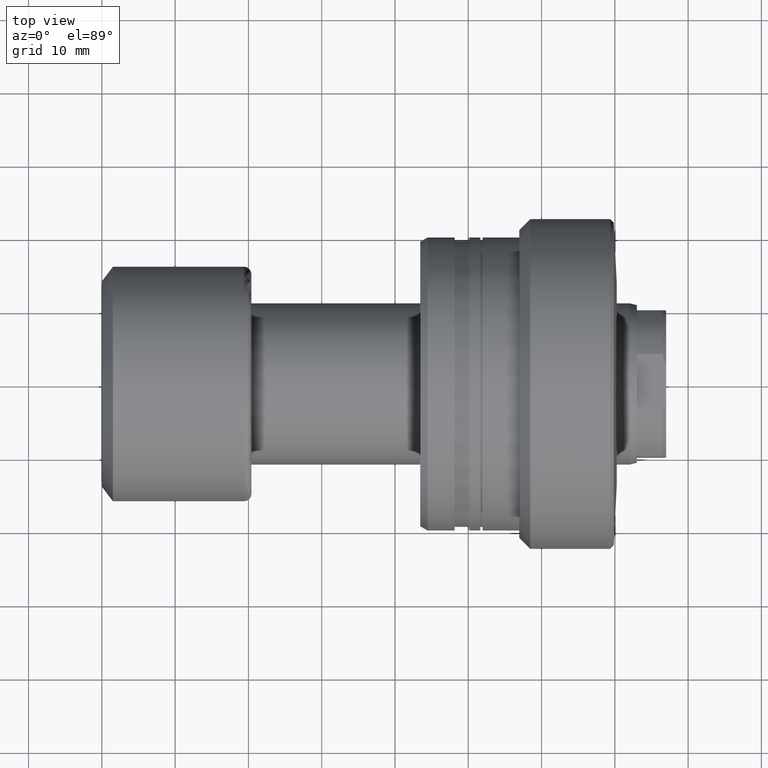
[diagram: clean part render]
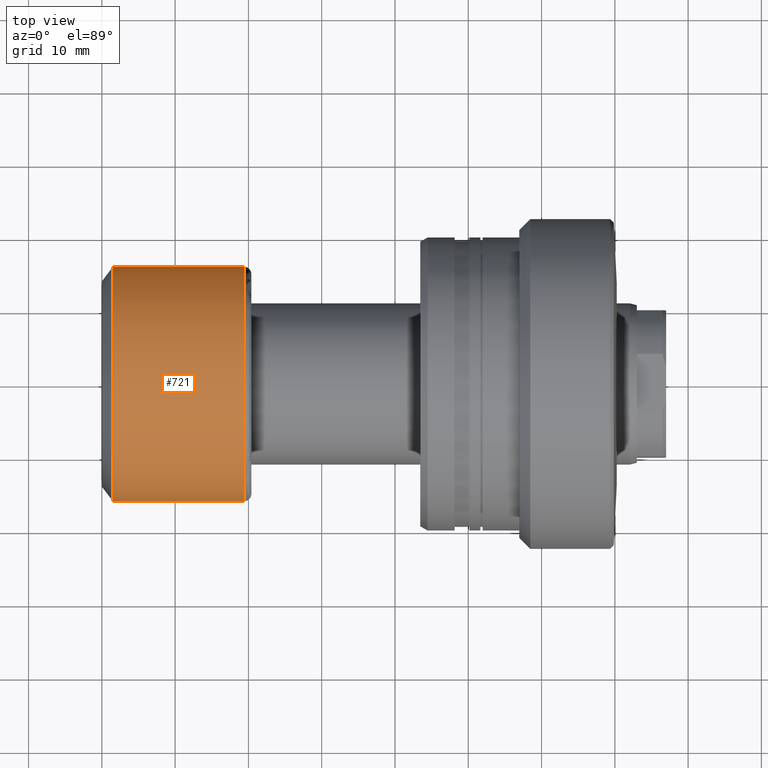
[diagram: same view with one face highlighted and labeled with its STEP entity id]
A machine part, top view. The second image highlights one B-rep face of the part: STEP entity #721.
In plain terms, the highlighted cylindrical surface (partial cylindrical patch) has radius 16 mm, axis along (-1, -0, -0).
Its self-contained STEP definition (entity closure, byte-faithful):
#2 = DIRECTION ( 'NONE',  ( -1.000000000000000000, -1.069542322069065801E-17, -0.000000000000000000 ) ) ;
#66 = AXIS2_PLACEMENT_3D ( 'NONE', #2309, #682, #76 ) ;
#76 = DIRECTION ( 'NONE',  ( 1.069542322069065801E-17, -1.000000000000000000, 0.000000000000000000 ) ) ;
#85 = ORIENTED_EDGE ( 'NONE', *, *, #499, .T. ) ;
#284 = EDGE_CURVE ( 'NONE', #1478, #1335, #2426, .T. ) ;
#381 = DIRECTION ( 'NONE',  ( -1.000000000000000000, -1.069542322069065801E-17, -0.000000000000000000 ) ) ;
#499 = EDGE_CURVE ( 'NONE', #1928, #1081, #1992, .T. ) ;
#517 = EDGE_CURVE ( 'NONE', #1478, #1928, #905, .T. ) ;
#678 = CIRCLE ( 'NONE', #686, 16.00000000000000000 ) ;
#682 = DIRECTION ( 'NONE',  ( -1.000000000000000000, -1.069542322069065801E-17, -0.000000000000000000 ) ) ;
#686 = AXIS2_PLACEMENT_3D ( 'NONE', #847, #1593, #2296 ) ;
#721 = ADVANCED_FACE ( 'NONE', ( #1916 ), #1570, .T. ) ;
#847 = CARTESIAN_POINT ( 'NONE',  ( 1.500000000000001998, 1.604313483103600935E-17, 0.000000000000000000 ) ) ;
#905 = CIRCLE ( 'NONE', #1370, 16.00000000000000000 ) ;
#948 = VECTOR ( 'NONE', #1897, 1000.000000000000000 ) ;
#952 = CARTESIAN_POINT ( 'NONE',  ( 1.711267715310505281E-16, -16.00000000000000000, 0.000000000000000000 ) ) ;
#1081 = VERTEX_POINT ( 'NONE', #1339 ) ;
#1305 = EDGE_CURVE ( 'NONE', #1335, #1081, #678, .T. ) ;
#1335 = VERTEX_POINT ( 'NONE', #2423 ) ;
#1339 = CARTESIAN_POINT ( 'NONE',  ( 1.500000000000001776, 16.00000000000000000, 0.000000000000000000 ) ) ;
#1366 = ORIENTED_EDGE ( 'NONE', *, *, #284, .F. ) ;
#1370 = AXIS2_PLACEMENT_3D ( 'NONE', #2262, #2, #1725 ) ;
#1478 = VERTEX_POINT ( 'NONE', #2245 ) ;
#1530 = CARTESIAN_POINT ( 'NONE',  ( 19.40000000000000213, 16.00000000000000000, 1.959434878635765131E-15 ) ) ;
#1570 = CYLINDRICAL_SURFACE ( 'NONE', #66, 16.00000000000000000 ) ;
#1593 = DIRECTION ( 'NONE',  ( -1.000000000000000000, -1.069542322069065801E-17, -0.000000000000000000 ) ) ;
#1639 = CARTESIAN_POINT ( 'NONE',  ( -1.711267715310505281E-16, 16.00000000000000000, 1.959434878635765131E-15 ) ) ;
#1725 = DIRECTION ( 'NONE',  ( 0.000000000000000000, -1.000000000000000000, 0.000000000000000000 ) ) ;
#1897 = DIRECTION ( 'NONE',  ( -1.000000000000000000, -1.069542322069065801E-17, -0.000000000000000000 ) ) ;
#1916 = FACE_OUTER_BOUND ( 'NONE', #2038, .T. ) ;
#1928 = VERTEX_POINT ( 'NONE', #1530 ) ;
#1992 = LINE ( 'NONE', #1639, #2067 ) ;
#2038 = EDGE_LOOP ( 'NONE', ( #2163, #85, #2319, #1366 ) ) ;
#2067 = VECTOR ( 'NONE', #381, 1000.000000000000000 ) ;
#2163 = ORIENTED_EDGE ( 'NONE', *, *, #517, .T. ) ;
#2245 = CARTESIAN_POINT ( 'NONE',  ( 19.40000000000000213, -16.00000000000000000, 0.000000000000000000 ) ) ;
#2262 = CARTESIAN_POINT ( 'NONE',  ( 19.40000000000000213, 2.074912104813987675E-16, 0.000000000000000000 ) ) ;
#2296 = DIRECTION ( 'NONE',  ( 1.355252715606880543E-17, -1.000000000000000000, 0.000000000000000000 ) ) ;
#2309 = CARTESIAN_POINT ( 'NONE',  ( 0.000000000000000000, 0.000000000000000000, 0.000000000000000000 ) ) ;
#2319 = ORIENTED_EDGE ( 'NONE', *, *, #1305, .F. ) ;
#2423 = CARTESIAN_POINT ( 'NONE',  ( 1.500000000000002220, -16.00000000000000000, 1.959434878635765526E-15 ) ) ;
#2426 = LINE ( 'NONE', #952, #948 ) ;